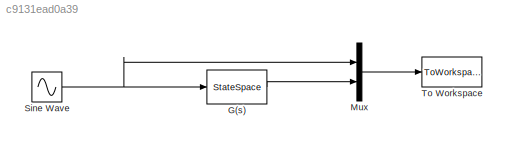
MODEL slx_c9131ead0a39
KIND model
CONFIG AbsTol = auto
CONFIG EnableMultiTasking = on
CONFIG FixedStep = auto
CONFIG MaxStep = auto
CONFIG MinStep = auto
CONFIG RelTol = 1e-4
CONFIG SampleTimeConstraint = Unconstrained
CONFIG Solver = VariableStepAuto
CONFIG SolverName = VariableStepAuto
CONFIG StartTime = 0.0
CONFIG StopTime = 60
BLOCK [StateSpace] G(s)
  A = [-121 -4.92e3 -7.98e4 -5.74e5 -1.83e6 -2.12e6 -1.94e5; eye(6,7)]
  B = [1 0 0 0 0 0 0]'
  C = [60 4.32e3 8.76e4 7.24e5 2.68e6 4.19e6 2.15e6]
  D = 0
  Ports = [1, 1]
  X0 = 0
BLOCK [Mux] Mux
  DisplayOption = bar
  Inputs = 2
  Ports = [2, 1]
BLOCK [Sin] Sine Wave
  Frequency = this_w
  Ports = [0, 1]
  SampleTime = 0
BLOCK [ToWorkspace] To Workspace
  FixptAsFi = on
  MaxDataPoints = inf
  Ports = [1]
  SampleTime = -1
  Save2DSignal = 3-D array (concatenate along third dimension)
  SaveFormat = Timeseries
  VariableName = simout
LINE G(s):1 -> Mux:2
LINE Mux:1 -> To Workspace:1
NET Sine Wave:1 -> G(s):1, Mux:1
note: NET lines group one-source signal fan-out (src -> all destinations, sorted); 1:1 wires keep LINE
